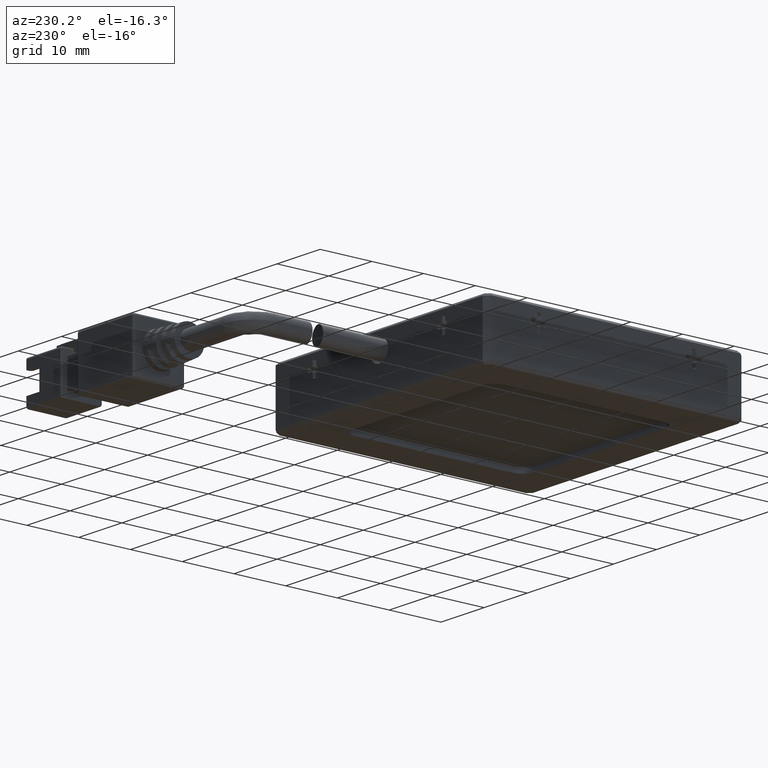
[diagram: clean part render]
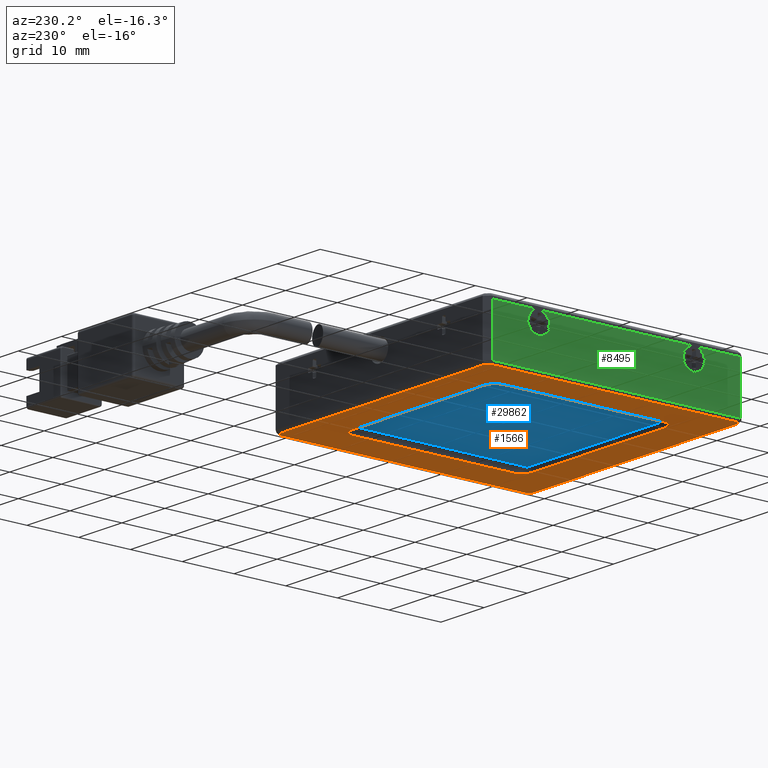
[diagram: same view with three faces highlighted in distinct colors, each labeled with its STEP entity id]
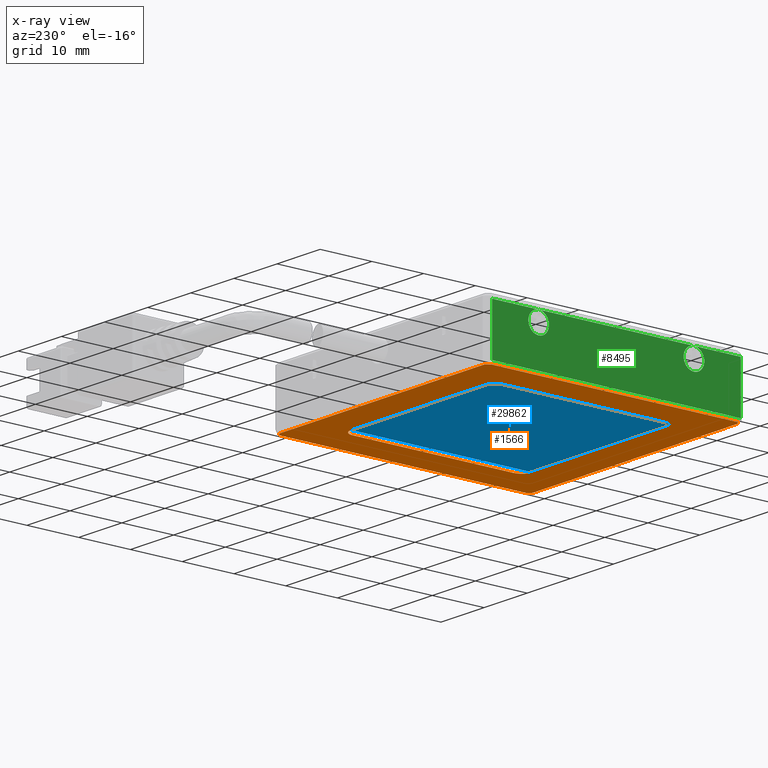
[diagram: x-ray of the same camera — body ghosted, the three highlighted faces saturated]
A machine part, auxiliary view with three faces highlighted in distinct colors.
The next image is the same camera in x-ray (body ghosted, the three faces saturated) — at least one of them is partly hidden behind the body in this view.
Their STEP definitions:

[orange] entity #1566 — the highlighted planar face has unit normal (0, 0, -1).
#533 = VECTOR ( 'NONE', #4984, 1000.000000000000000 ) ;
#655 = CARTESIAN_POINT ( 'NONE',  ( -5.232974683544277600, -9.581753978307125100, -8.750000000000000000 ) ) ;
#742 = VERTEX_POINT ( 'NONE', #37926 ) ;
#1248 = CARTESIAN_POINT ( 'NONE',  ( 34.76702531645571500, 29.71113924050632700, -8.750000000000000000 ) ) ;
#1566 = ADVANCED_FACE ( 'NONE', ( #10912, #19589 ), #37234, .T. ) ;
#2592 = VERTEX_POINT ( 'NONE', #14979 ) ;
#2875 = DIRECTION ( 'NONE',  ( 0.7071067811865526800, 0.7071067811865423500, 0.0000000000000000000 ) ) ;
#2886 = DIRECTION ( 'NONE',  ( 1.000000000000000000, -0.0000000000000000000, 0.0000000000000000000 ) ) ;
#2969 = LINE ( 'NONE', #33541, #8523 ) ;
#3470 = CARTESIAN_POINT ( 'NONE',  ( 43.05991853526919800, 38.71113924050632700, -8.749999999999998200 ) ) ;
#3947 = VECTOR ( 'NONE', #10509, 999.9999999999998900 ) ;
#4106 = VERTEX_POINT ( 'NONE', #21316 ) ;
#4505 = DIRECTION ( 'NONE',  ( -1.000000000000000000, 0.0000000000000000000, 0.0000000000000000000 ) ) ;
#4612 = ORIENTED_EDGE ( 'NONE', *, *, #13536, .T. ) ;
#4724 = VECTOR ( 'NONE', #34242, 1000.000000000000000 ) ;
#4923 = ORIENTED_EDGE ( 'NONE', *, *, #19203, .T. ) ;
#4984 = DIRECTION ( 'NONE',  ( 1.000000000000000000, -0.0000000000000000000, 0.0000000000000000000 ) ) ;
#5026 = CARTESIAN_POINT ( 'NONE',  ( 36.76702531645571500, 14.21113924050632300, -8.750000000000000000 ) ) ;
#5194 = VERTEX_POINT ( 'NONE', #20079 ) ;
#6447 = CIRCLE ( 'NONE', #28780, 2.000000000000000000 ) ;
#7028 = CARTESIAN_POINT ( 'NONE',  ( 43.76702531645572200, 38.00403245931980900, -8.750000000000003600 ) ) ;
#7237 = ORIENTED_EDGE ( 'NONE', *, *, #26252, .T. ) ;
#7762 = EDGE_CURVE ( 'NONE', #35559, #26059, #26481, .T. ) ;
#7839 = VECTOR ( 'NONE', #14702, 1000.000000000000000 ) ;
#8523 = VECTOR ( 'NONE', #17315, 1000.000000000000000 ) ;
#8804 = VERTEX_POINT ( 'NONE', #24869 ) ;
#8844 = ORIENTED_EDGE ( 'NONE', *, *, #41259, .T. ) ;
#9412 = CARTESIAN_POINT ( 'NONE',  ( 19.26702531645572200, -10.28886075949366900, -8.750000000000000000 ) ) ;
#9428 = CARTESIAN_POINT ( 'NONE',  ( 19.26702531645572200, 38.71113924050632700, -8.750000000000000000 ) ) ;
#9619 = DIRECTION ( 'NONE',  ( -0.0000000000000000000, -0.0000000000000000000, 1.000000000000000000 ) ) ;
#10140 = CARTESIAN_POINT ( 'NONE',  ( 19.26702531645572200, 31.71113924050632300, -8.750000000000000000 ) ) ;
#10251 = LINE ( 'NONE', #41797, #35185 ) ;
#10280 = EDGE_CURVE ( 'NONE', #5194, #8804, #20799, .T. ) ;
#10509 = DIRECTION ( 'NONE',  ( -0.7071067811865441300, 0.7071067811865510100, 0.0000000000000000000 ) ) ;
#10912 = FACE_BOUND ( 'NONE', #27710, .T. ) ;
#11341 = CARTESIAN_POINT ( 'NONE',  ( 19.26702531645572200, 14.21113924050632300, -8.750000000000000000 ) ) ;
#11375 = CARTESIAN_POINT ( 'NONE',  ( 43.76702531645572200, -9.581753978307132200, -8.750000000000000000 ) ) ;
#11568 = LINE ( 'NONE', #10140, #36503 ) ;
#11673 = EDGE_CURVE ( 'NONE', #33417, #17615, #39316, .T. ) ;
#11734 = VERTEX_POINT ( 'NONE', #18170 ) ;
#11905 = CARTESIAN_POINT ( 'NONE',  ( 1.767025316455714400, 14.21113924050632300, -8.750000000000000000 ) ) ;
#12701 = EDGE_CURVE ( 'NONE', #39519, #14205, #13603, .T. ) ;
#13098 = EDGE_CURVE ( 'NONE', #742, #11734, #6447, .T. ) ;
#13167 = CARTESIAN_POINT ( 'NONE',  ( -5.232974683544277600, 38.00403245931980200, -8.749999999999998200 ) ) ;
#13408 = DIRECTION ( 'NONE',  ( -1.000000000000000000, 0.0000000000000000000, -0.0000000000000000000 ) ) ;
#13536 = EDGE_CURVE ( 'NONE', #14205, #22074, #23639, .T. ) ;
#13603 = LINE ( 'NONE', #9428, #27887 ) ;
#14205 = VERTEX_POINT ( 'NONE', #3470 ) ;
#14620 = DIRECTION ( 'NONE',  ( -1.000000000000000000, 0.0000000000000000000, -0.0000000000000000000 ) ) ;
#14702 = DIRECTION ( 'NONE',  ( 0.0000000000000000000, 1.000000000000000000, 0.0000000000000000000 ) ) ;
#14979 = CARTESIAN_POINT ( 'NONE',  ( 43.76702531645572200, -9.581753978307132200, -8.750000000000000000 ) ) ;
#15623 = DIRECTION ( 'NONE',  ( 0.7071067811865441300, -0.7071067811865510100, 0.0000000000000000000 ) ) ;
#15848 = EDGE_CURVE ( 'NONE', #11734, #41154, #38732, .T. ) ;
#15899 = VERTEX_POINT ( 'NONE', #34924 ) ;
#16238 = LINE ( 'NONE', #11375, #32566 ) ;
#16495 = LINE ( 'NONE', #5026, #7839 ) ;
#17315 = DIRECTION ( 'NONE',  ( -0.0000000000000000000, -1.000000000000000000, -0.0000000000000000000 ) ) ;
#17615 = VERTEX_POINT ( 'NONE', #13167 ) ;
#18008 = AXIS2_PLACEMENT_3D ( 'NONE', #11341, #34076, #14620 ) ;
#18013 = CARTESIAN_POINT ( 'NONE',  ( 3.767025316455714400, 29.71113924050632300, -8.750000000000000000 ) ) ;
#18170 = CARTESIAN_POINT ( 'NONE',  ( 1.767025316455714400, 29.71113924050632300, -8.750000000000000000 ) ) ;
#18235 = ORIENTED_EDGE ( 'NONE', *, *, #12701, .T. ) ;
#18687 = CARTESIAN_POINT ( 'NONE',  ( 34.76702531645571500, -1.288860759493677400, -8.750000000000000000 ) ) ;
#19184 = DIRECTION ( 'NONE',  ( -1.000000000000000000, 0.0000000000000000000, -0.0000000000000000000 ) ) ;
#19203 = EDGE_CURVE ( 'NONE', #4106, #5194, #16495, .T. ) ;
#19252 = ORIENTED_EDGE ( 'NONE', *, *, #42116, .T. ) ;
#19589 = FACE_OUTER_BOUND ( 'NONE', #30580, .T. ) ;
#19892 = EDGE_CURVE ( 'NONE', #17615, #39519, #10251, .T. ) ;
#20079 = CARTESIAN_POINT ( 'NONE',  ( 36.76702531645571500, 29.71113924050632700, -8.750000000000000000 ) ) ;
#20081 = ORIENTED_EDGE ( 'NONE', *, *, #19892, .T. ) ;
#20190 = CARTESIAN_POINT ( 'NONE',  ( -4.525867902357740400, -10.28886075949366900, -8.750000000000000000 ) ) ;
#20383 = VECTOR ( 'NONE', #37641, 1000.000000000000000 ) ;
#20749 = LINE ( 'NONE', #9412, #28441 ) ;
#20799 = CIRCLE ( 'NONE', #27524, 2.000000000000001800 ) ;
#21216 = DIRECTION ( 'NONE',  ( -0.7071067811865510100, -0.7071067811865441300, 0.0000000000000000000 ) ) ;
#21316 = CARTESIAN_POINT ( 'NONE',  ( 36.76702531645571500, -1.288860759493677400, -8.750000000000000000 ) ) ;
#21330 = DIRECTION ( 'NONE',  ( -1.000000000000000000, 0.0000000000000000000, 0.0000000000000000000 ) ) ;
#22006 = DIRECTION ( 'NONE',  ( -1.000000000000000000, 0.0000000000000000000, 0.0000000000000000000 ) ) ;
#22074 = VERTEX_POINT ( 'NONE', #7028 ) ;
#22290 = ORIENTED_EDGE ( 'NONE', *, *, #15848, .T. ) ;
#22917 = EDGE_CURVE ( 'NONE', #2592, #32644, #16238, .T. ) ;
#23639 = LINE ( 'NONE', #38503, #40879 ) ;
#24064 = DIRECTION ( 'NONE',  ( -0.0000000000000000000, -0.0000000000000000000, 1.000000000000000000 ) ) ;
#24517 = CARTESIAN_POINT ( 'NONE',  ( -5.232974683544277600, 14.21113924050632300, -8.750000000000000000 ) ) ;
#24591 = CARTESIAN_POINT ( 'NONE',  ( 1.767025316455714400, -1.288860759493677400, -8.750000000000000000 ) ) ;
#24614 = ORIENTED_EDGE ( 'NONE', *, *, #7762, .T. ) ;
#24652 = CARTESIAN_POINT ( 'NONE',  ( 19.26702531645572200, -3.288860759493677400, -8.750000000000000000 ) ) ;
#24869 = CARTESIAN_POINT ( 'NONE',  ( 34.76702531645571500, 31.71113924050632300, -8.750000000000000000 ) ) ;
#25669 = EDGE_CURVE ( 'NONE', #32644, #15899, #20749, .T. ) ;
#26059 = VERTEX_POINT ( 'NONE', #34336 ) ;
#26090 = AXIS2_PLACEMENT_3D ( 'NONE', #29138, #9619, #32383 ) ;
#26252 = EDGE_CURVE ( 'NONE', #41154, #35559, #40092, .T. ) ;
#26481 = LINE ( 'NONE', #24652, #533 ) ;
#27524 = AXIS2_PLACEMENT_3D ( 'NONE', #1248, #24064, #4505 ) ;
#27710 = EDGE_LOOP ( 'NONE', ( #22290, #7237, #24614, #8844, #4923, #37672, #31480, #27775 ) ) ;
#27775 = ORIENTED_EDGE ( 'NONE', *, *, #13098, .T. ) ;
#27887 = VECTOR ( 'NONE', #2886, 1000.000000000000000 ) ;
#28441 = VECTOR ( 'NONE', #19184, 1000.000000000000000 ) ;
#28780 = AXIS2_PLACEMENT_3D ( 'NONE', #18013, #40770, #21330 ) ;
#29138 = CARTESIAN_POINT ( 'NONE',  ( 3.767025316455714400, -1.288860759493677400, -8.750000000000000000 ) ) ;
#29740 = CARTESIAN_POINT ( 'NONE',  ( 3.767025316455714400, -3.288860759493677400, -8.750000000000000000 ) ) ;
#30580 = EDGE_LOOP ( 'NONE', ( #39872, #20081, #18235, #4612, #19252, #31391, #31494, #34719 ) ) ;
#31391 = ORIENTED_EDGE ( 'NONE', *, *, #22917, .T. ) ;
#31480 = ORIENTED_EDGE ( 'NONE', *, *, #36710, .T. ) ;
#31494 = ORIENTED_EDGE ( 'NONE', *, *, #25669, .T. ) ;
#32037 = CIRCLE ( 'NONE', #35239, 2.000000000000001800 ) ;
#32383 = DIRECTION ( 'NONE',  ( -1.000000000000000000, 0.0000000000000000000, 0.0000000000000000000 ) ) ;
#32460 = CARTESIAN_POINT ( 'NONE',  ( -4.525867902357719100, 38.71113924050632700, -8.750000000000000000 ) ) ;
#32566 = VECTOR ( 'NONE', #21216, 999.9999999999998900 ) ;
#32644 = VERTEX_POINT ( 'NONE', #36770 ) ;
#33417 = VERTEX_POINT ( 'NONE', #655 ) ;
#33541 = CARTESIAN_POINT ( 'NONE',  ( 43.76702531645572200, 14.21113924050632300, -8.750000000000000000 ) ) ;
#34076 = DIRECTION ( 'NONE',  ( 0.0000000000000000000, 0.0000000000000000000, -1.000000000000000000 ) ) ;
#34242 = DIRECTION ( 'NONE',  ( 0.0000000000000000000, 1.000000000000000000, 0.0000000000000000000 ) ) ;
#34336 = CARTESIAN_POINT ( 'NONE',  ( 34.76702531645571500, -3.288860759493677400, -8.750000000000000000 ) ) ;
#34719 = ORIENTED_EDGE ( 'NONE', *, *, #42048, .T. ) ;
#34924 = CARTESIAN_POINT ( 'NONE',  ( -4.525867902357740400, -10.28886075949366900, -8.750000000000000000 ) ) ;
#35185 = VECTOR ( 'NONE', #2875, 1000.000000000000000 ) ;
#35239 = AXIS2_PLACEMENT_3D ( 'NONE', #18687, #41441, #22006 ) ;
#35559 = VERTEX_POINT ( 'NONE', #29740 ) ;
#36503 = VECTOR ( 'NONE', #13408, 1000.000000000000000 ) ;
#36710 = EDGE_CURVE ( 'NONE', #8804, #742, #11568, .T. ) ;
#36770 = CARTESIAN_POINT ( 'NONE',  ( 43.05991853526920500, -10.28886075949366600, -8.750000000000003600 ) ) ;
#37234 = PLANE ( 'NONE',  #18008 ) ;
#37641 = DIRECTION ( 'NONE',  ( -0.0000000000000000000, -1.000000000000000000, -0.0000000000000000000 ) ) ;
#37672 = ORIENTED_EDGE ( 'NONE', *, *, #10280, .T. ) ;
#37926 = CARTESIAN_POINT ( 'NONE',  ( 3.767025316455714400, 31.71113924050632300, -8.750000000000000000 ) ) ;
#38503 = CARTESIAN_POINT ( 'NONE',  ( 43.05991853526917600, 38.71113924050632700, -8.750000000000000000 ) ) ;
#38555 = LINE ( 'NONE', #20190, #3947 ) ;
#38732 = LINE ( 'NONE', #11905, #20383 ) ;
#39316 = LINE ( 'NONE', #24517, #4724 ) ;
#39519 = VERTEX_POINT ( 'NONE', #32460 ) ;
#39872 = ORIENTED_EDGE ( 'NONE', *, *, #11673, .T. ) ;
#40092 = CIRCLE ( 'NONE', #26090, 2.000000000000000000 ) ;
#40770 = DIRECTION ( 'NONE',  ( -0.0000000000000000000, -0.0000000000000000000, 1.000000000000000000 ) ) ;
#40879 = VECTOR ( 'NONE', #15623, 999.9999999999998900 ) ;
#41154 = VERTEX_POINT ( 'NONE', #24591 ) ;
#41259 = EDGE_CURVE ( 'NONE', #26059, #4106, #32037, .T. ) ;
#41441 = DIRECTION ( 'NONE',  ( -0.0000000000000000000, -0.0000000000000000000, 1.000000000000000000 ) ) ;
#41797 = CARTESIAN_POINT ( 'NONE',  ( -5.232974683544277600, 38.00403245931978100, -8.750000000000000000 ) ) ;
#42048 = EDGE_CURVE ( 'NONE', #15899, #33417, #38555, .T. ) ;
#42116 = EDGE_CURVE ( 'NONE', #22074, #2592, #2969, .T. ) ;

[blue] entity #29862 — the highlighted planar face has unit normal (0, 0, -1).
#125 = LINE ( 'NONE', #21706, #11818 ) ;
#1320 = FACE_OUTER_BOUND ( 'NONE', #7989, .T. ) ;
#2196 = DIRECTION ( 'NONE',  ( -0.0000000000000000000, -1.000000000000000000, 0.0000000000000000000 ) ) ;
#2815 = PLANE ( 'NONE',  #33892 ) ;
#5370 = ORIENTED_EDGE ( 'NONE', *, *, #37476, .T. ) ;
#7770 = CARTESIAN_POINT ( 'NONE',  ( -0.06796260940836185100, -5.288860759493659600, -7.549999999999995400 ) ) ;
#7989 = EDGE_LOOP ( 'NONE', ( #39892, #5370, #27470, #13735 ) ) ;
#8639 = LINE ( 'NONE', #7770, #41178 ) ;
#9499 = DIRECTION ( 'NONE',  ( 0.0000000000000000000, 0.0000000000000000000, -1.000000000000000000 ) ) ;
#11016 = DIRECTION ( 'NONE',  ( -0.0000000000000000000, 1.000000000000000000, 0.0000000000000000000 ) ) ;
#11818 = VECTOR ( 'NONE', #2196, 1000.000000000000000 ) ;
#12577 = VERTEX_POINT ( 'NONE', #28645 ) ;
#12982 = VERTEX_POINT ( 'NONE', #17295 ) ;
#13735 = ORIENTED_EDGE ( 'NONE', *, *, #40490, .T. ) ;
#13967 = EDGE_CURVE ( 'NONE', #12577, #26593, #125, .T. ) ;
#15344 = CARTESIAN_POINT ( 'NONE',  ( -0.06796260940836185100, 32.71113924050633400, -7.549999999999995400 ) ) ;
#15375 = VECTOR ( 'NONE', #26898, 1000.000000000000000 ) ;
#15488 = DIRECTION ( 'NONE',  ( 1.000000000000000000, 0.0000000000000000000, 0.0000000000000000000 ) ) ;
#16450 = LINE ( 'NONE', #15344, #36802 ) ;
#17295 = CARTESIAN_POINT ( 'NONE',  ( -0.06796260940836185100, -5.288860759493659600, -7.549999999999995400 ) ) ;
#21706 = CARTESIAN_POINT ( 'NONE',  ( 37.93203739059163800, -5.288860759493659600, -7.549999999999995400 ) ) ;
#21990 = CARTESIAN_POINT ( 'NONE',  ( 37.93203739059163800, -5.288860759493659600, -7.549999999999995400 ) ) ;
#26593 = VERTEX_POINT ( 'NONE', #21990 ) ;
#26898 = DIRECTION ( 'NONE',  ( -1.000000000000000000, -0.0000000000000000000, 0.0000000000000000000 ) ) ;
#27470 = ORIENTED_EDGE ( 'NONE', *, *, #13967, .T. ) ;
#28645 = CARTESIAN_POINT ( 'NONE',  ( 37.93203739059163800, 32.71113924050633400, -7.549999999999995400 ) ) ;
#29002 = CARTESIAN_POINT ( 'NONE',  ( 18.93203739059163800, 13.71113924050633900, -7.549999999999995400 ) ) ;
#29862 = ADVANCED_FACE ( 'NONE', ( #1320 ), #2815, .T. ) ;
#29892 = VERTEX_POINT ( 'NONE', #35620 ) ;
#32249 = DIRECTION ( 'NONE',  ( -1.000000000000000000, 0.0000000000000000000, -0.0000000000000000000 ) ) ;
#33892 = AXIS2_PLACEMENT_3D ( 'NONE', #29002, #9499, #32249 ) ;
#35620 = CARTESIAN_POINT ( 'NONE',  ( -0.06796260940836185100, 32.71113924050633400, -7.549999999999995400 ) ) ;
#36802 = VECTOR ( 'NONE', #15488, 1000.000000000000000 ) ;
#37476 = EDGE_CURVE ( 'NONE', #29892, #12577, #16450, .T. ) ;
#39788 = CARTESIAN_POINT ( 'NONE',  ( -0.06796260940836185100, -5.288860759493659600, -7.549999999999995400 ) ) ;
#39892 = ORIENTED_EDGE ( 'NONE', *, *, #41061, .T. ) ;
#40490 = EDGE_CURVE ( 'NONE', #26593, #12982, #41312, .T. ) ;
#41061 = EDGE_CURVE ( 'NONE', #12982, #29892, #8639, .T. ) ;
#41178 = VECTOR ( 'NONE', #11016, 1000.000000000000000 ) ;
#41312 = LINE ( 'NONE', #39788, #15375 ) ;

[green] entity #8495 — the highlighted planar face has unit normal (1, 0, 0).
#32 = EDGE_CURVE ( 'NONE', #37954, #26278, #30116, .T. ) ;
#179 = CARTESIAN_POINT ( 'NONE',  ( -5.732974683521539400, -0.7888607594937634400, -2.749999999990905500 ) ) ;
#1414 = CIRCLE ( 'NONE', #29822, 1.999999999990904800 ) ;
#1942 = LINE ( 'NONE', #26657, #18188 ) ;
#2052 = CIRCLE ( 'NONE', #21674, 1.999999999990904800 ) ;
#2055 = DIRECTION ( 'NONE',  ( 0.0000000000000000000, 0.0000000000000000000, 1.000000000000000000 ) ) ;
#2076 = LINE ( 'NONE', #40154, #10683 ) ;
#2163 = ORIENTED_EDGE ( 'NONE', *, *, #23858, .F. ) ;
#3145 = ORIENTED_EDGE ( 'NONE', *, *, #26645, .F. ) ;
#4957 = ORIENTED_EDGE ( 'NONE', *, *, #39008, .F. ) ;
#6923 = EDGE_LOOP ( 'NONE', ( #24047, #27043 ) ) ;
#7435 = CARTESIAN_POINT ( 'NONE',  ( -5.732974683521539400, -0.7888607594937636600, -0.7500000000000006700 ) ) ;
#8495 = ADVANCED_FACE ( 'NONE', ( #22806, #31431, #14104 ), #39618, .F. ) ;
#9618 = VERTEX_POINT ( 'NONE', #23530 ) ;
#9843 = VERTEX_POINT ( 'NONE', #11532 ) ;
#10683 = VECTOR ( 'NONE', #17400, 1000.000000000000000 ) ;
#10689 = DIRECTION ( 'NONE',  ( 0.0000000000000000000, 0.0000000000000000000, 1.000000000000000000 ) ) ;
#11532 = CARTESIAN_POINT ( 'NONE',  ( -5.732974683521539400, -0.7888607594937636600, 1.249999999990904200 ) ) ;
#11785 = VECTOR ( 'NONE', #28932, 1000.000000000000000 ) ;
#12930 = CARTESIAN_POINT ( 'NONE',  ( -5.732974683521539400, 29.21113924050623800, -0.7500000000000006700 ) ) ;
#13235 = CARTESIAN_POINT ( 'NONE',  ( -5.732974683544278500, -9.788860759493669400, -8.250000000000001800 ) ) ;
#13676 = CARTESIAN_POINT ( 'NONE',  ( -5.732974683521539400, 29.21113924050623800, -0.7500000000000006700 ) ) ;
#14104 = FACE_OUTER_BOUND ( 'NONE', #33144, .T. ) ;
#14127 = CARTESIAN_POINT ( 'NONE',  ( -5.732974683521539400, 29.21113924050623800, -2.749999999990905500 ) ) ;
#15007 = EDGE_LOOP ( 'NONE', ( #36929, #2163 ) ) ;
#15125 = LINE ( 'NONE', #38738, #31405 ) ;
#16174 = DIRECTION ( 'NONE',  ( 0.0000000000000000000, 0.0000000000000000000, 1.000000000000000000 ) ) ;
#16403 = EDGE_CURVE ( 'NONE', #19537, #9843, #2052, .T. ) ;
#16914 = DIRECTION ( 'NONE',  ( 0.0000000000000000000, 0.0000000000000000000, 1.000000000000000000 ) ) ;
#16986 = CARTESIAN_POINT ( 'NONE',  ( -5.732974683544278500, -10.78886075949366900, 1.249999999999999300 ) ) ;
#17400 = DIRECTION ( 'NONE',  ( -0.0000000000000000000, -1.000000000000000000, -0.0000000000000000000 ) ) ;
#18188 = VECTOR ( 'NONE', #29929, 1000.000000000000000 ) ;
#19017 = EDGE_CURVE ( 'NONE', #9843, #19537, #38412, .T. ) ;
#19056 = CARTESIAN_POINT ( 'NONE',  ( -5.732974683544285600, 38.21113924050632700, 1.249999999999999300 ) ) ;
#19537 = VERTEX_POINT ( 'NONE', #179 ) ;
#19827 = CARTESIAN_POINT ( 'NONE',  ( -5.732974683521539400, 29.21113924050623800, 1.249999999990904200 ) ) ;
#20282 = DIRECTION ( 'NONE',  ( 0.0000000000000000000, 0.0000000000000000000, -1.000000000000000000 ) ) ;
#21054 = AXIS2_PLACEMENT_3D ( 'NONE', #13676, #36434, #16914 ) ;
#21293 = CARTESIAN_POINT ( 'NONE',  ( -5.732974683544278500, 38.21113924050634100, -8.250000000000003600 ) ) ;
#21563 = DIRECTION ( 'NONE',  ( -1.000000000000000000, 0.0000000000000000000, 0.0000000000000000000 ) ) ;
#21674 = AXIS2_PLACEMENT_3D ( 'NONE', #40979, #21563, #2055 ) ;
#22127 = CIRCLE ( 'NONE', #21054, 1.999999999990904800 ) ;
#22753 = ORIENTED_EDGE ( 'NONE', *, *, #32681, .F. ) ;
#22806 = FACE_BOUND ( 'NONE', #15007, .T. ) ;
#23530 = CARTESIAN_POINT ( 'NONE',  ( -5.732974683544278500, -9.788860759493665900, 1.249999999999999300 ) ) ;
#23858 = EDGE_CURVE ( 'NONE', #30105, #28341, #22127, .T. ) ;
#24047 = ORIENTED_EDGE ( 'NONE', *, *, #19017, .F. ) ;
#24325 = ORIENTED_EDGE ( 'NONE', *, *, #32, .F. ) ;
#25538 = AXIS2_PLACEMENT_3D ( 'NONE', #16986, #39756, #20282 ) ;
#26278 = VERTEX_POINT ( 'NONE', #29260 ) ;
#26645 = EDGE_CURVE ( 'NONE', #9618, #28815, #15125, .T. ) ;
#26657 = CARTESIAN_POINT ( 'NONE',  ( -5.732974683544278500, -10.78886075949366900, -8.250000000000000000 ) ) ;
#27043 = ORIENTED_EDGE ( 'NONE', *, *, #16403, .F. ) ;
#28341 = VERTEX_POINT ( 'NONE', #19827 ) ;
#28815 = VERTEX_POINT ( 'NONE', #13235 ) ;
#28932 = DIRECTION ( 'NONE',  ( -0.0000000000000000000, 0.0000000000000000000, 1.000000000000000000 ) ) ;
#29260 = CARTESIAN_POINT ( 'NONE',  ( -5.732974683544282100, 38.21113924050632700, 1.249999999999999300 ) ) ;
#29446 = EDGE_CURVE ( 'NONE', #28341, #30105, #1414, .T. ) ;
#29822 = AXIS2_PLACEMENT_3D ( 'NONE', #12930, #35656, #16174 ) ;
#29929 = DIRECTION ( 'NONE',  ( 0.0000000000000000000, 1.000000000000000000, 0.0000000000000000000 ) ) ;
#30105 = VERTEX_POINT ( 'NONE', #14127 ) ;
#30116 = LINE ( 'NONE', #19056, #11785 ) ;
#30211 = DIRECTION ( 'NONE',  ( -1.000000000000000000, 0.0000000000000000000, 0.0000000000000000000 ) ) ;
#31405 = VECTOR ( 'NONE', #32349, 1000.000000000000000 ) ;
#31431 = FACE_BOUND ( 'NONE', #6923, .T. ) ;
#32349 = DIRECTION ( 'NONE',  ( -0.0000000000000000000, 0.0000000000000000000, -1.000000000000000000 ) ) ;
#32681 = EDGE_CURVE ( 'NONE', #26278, #9618, #2076, .T. ) ;
#33144 = EDGE_LOOP ( 'NONE', ( #22753, #24325, #4957, #3145 ) ) ;
#33298 = AXIS2_PLACEMENT_3D ( 'NONE', #7435, #30211, #10689 ) ;
#35656 = DIRECTION ( 'NONE',  ( -1.000000000000000000, 0.0000000000000000000, 0.0000000000000000000 ) ) ;
#36434 = DIRECTION ( 'NONE',  ( -1.000000000000000000, 0.0000000000000000000, 0.0000000000000000000 ) ) ;
#36929 = ORIENTED_EDGE ( 'NONE', *, *, #29446, .F. ) ;
#37954 = VERTEX_POINT ( 'NONE', #21293 ) ;
#38412 = CIRCLE ( 'NONE', #33298, 1.999999999990904800 ) ;
#38738 = CARTESIAN_POINT ( 'NONE',  ( -5.732974683544278500, -9.788860759493669400, 1.249999999999999300 ) ) ;
#39008 = EDGE_CURVE ( 'NONE', #28815, #37954, #1942, .T. ) ;
#39618 = PLANE ( 'NONE',  #25538 ) ;
#39756 = DIRECTION ( 'NONE',  ( 1.000000000000000000, 0.0000000000000000000, 0.0000000000000000000 ) ) ;
#40154 = CARTESIAN_POINT ( 'NONE',  ( -5.732974683544278500, 14.21113924050632300, 1.249999999999999300 ) ) ;
#40979 = CARTESIAN_POINT ( 'NONE',  ( -5.732974683521539400, -0.7888607594937636600, -0.7500000000000006700 ) ) ;